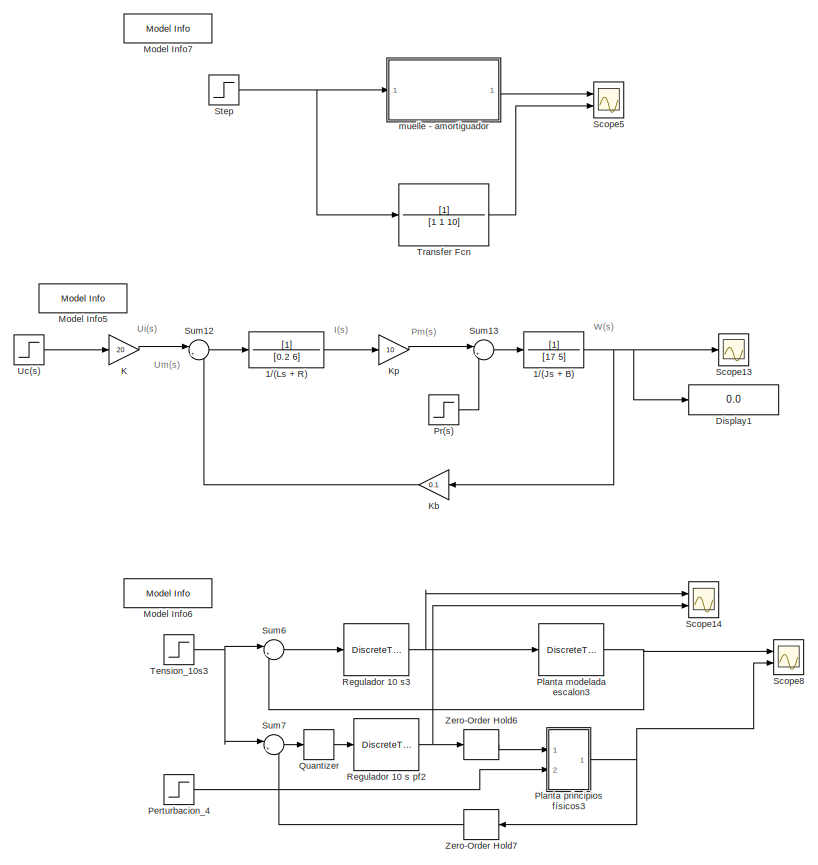
[diagram: root canvas - part 1/4, left side, full height]
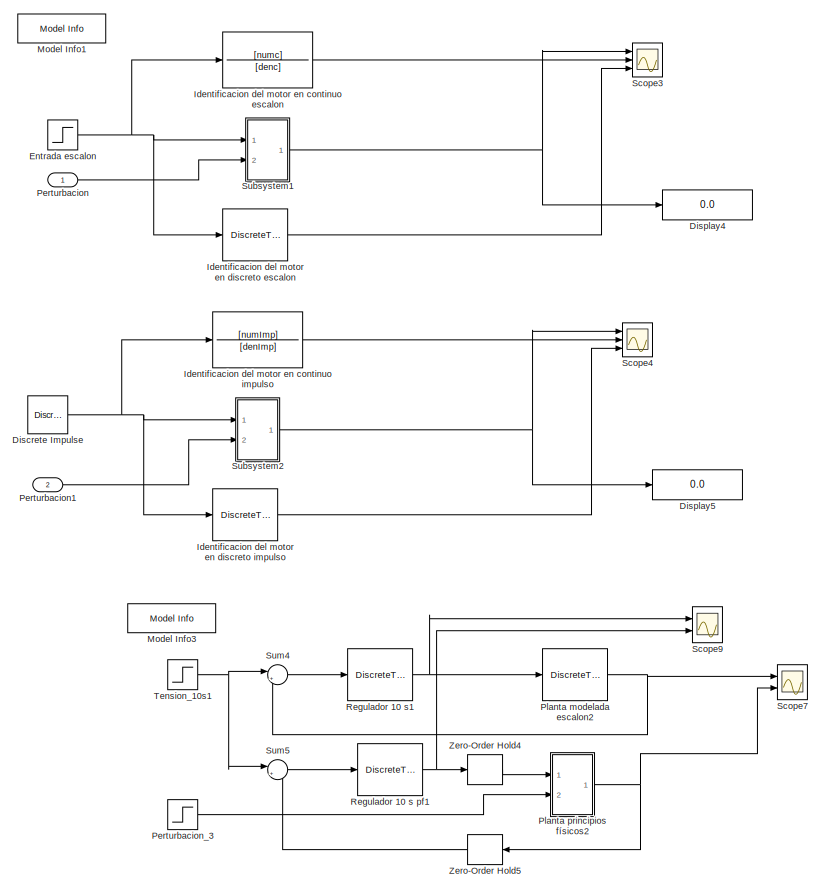
[diagram: root canvas - part 2/4, center side, full height]
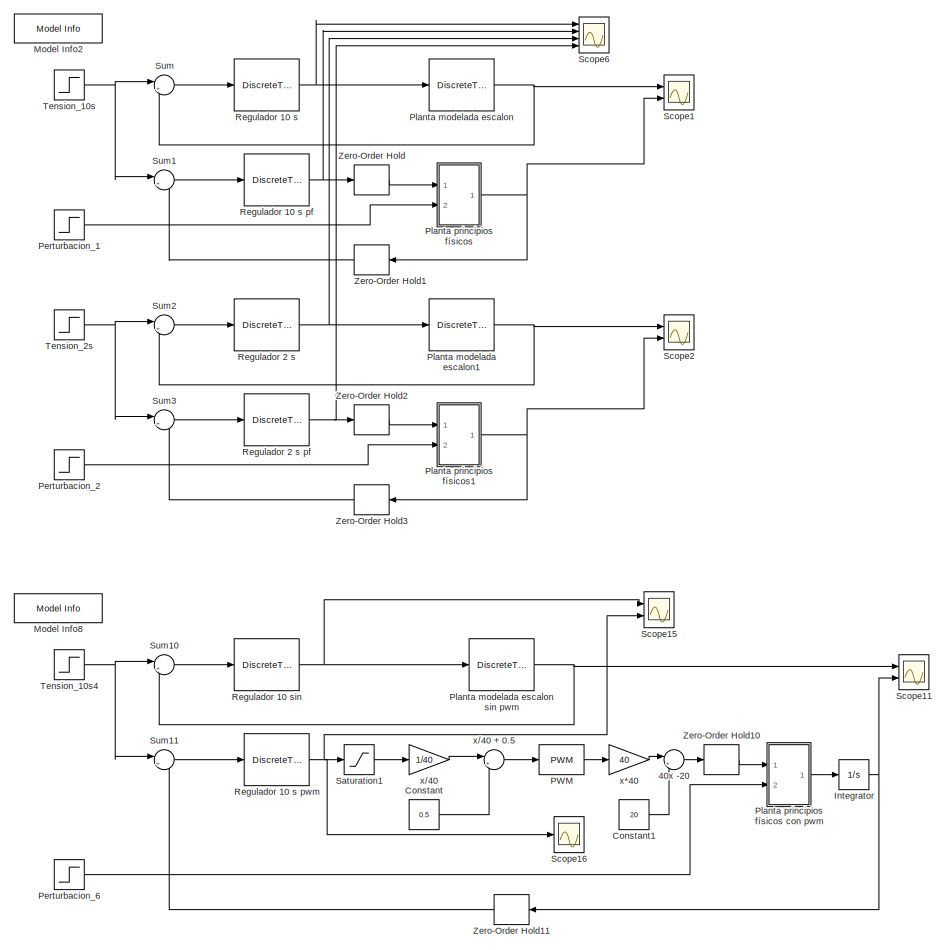
[diagram: root canvas - part 3/4, center side, full height]
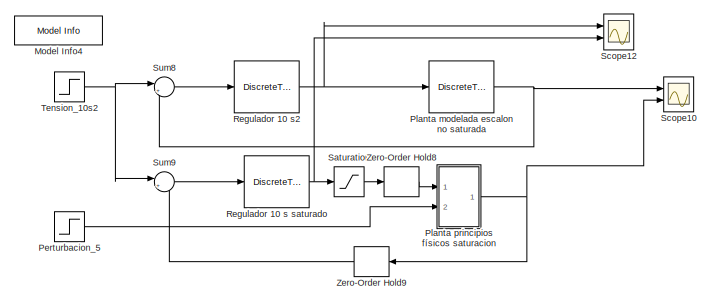
[diagram: root canvas - part 4/4, bottom right region]
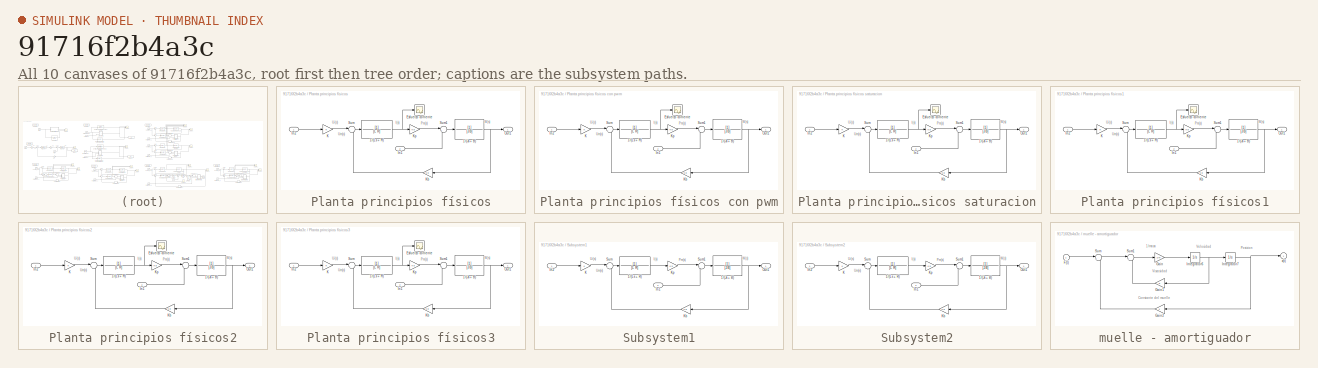
[diagram: thumbnail index - all 10 canvases of the model, root first then tree order]
MODEL slx_91716f2b4a3c
KIND model
CONFIG AbsTol = auto
CONFIG EnableMultiTasking = off
CONFIG FixedStep = 0.01
CONFIG MaxStep = auto
CONFIG MinStep = auto
CONFIG RelTol = 1e-3
CONFIG SampleTimeConstraint = Unconstrained
CONFIG SolverName = FixedStepAuto
CONFIG StartTime = 0.0
CONFIG StopTime = 40
BLOCK [TransferFcn] 1//(Js + B)
  Denominator = [17 5]
BLOCK [TransferFcn] 1//(Ls + R)
  Denominator = [0.2 6]
BLOCK [Sum] 40x -20
  Inputs = |+-
  Ports = [2, 1]
BLOCK [Constant] Constant
  Value = 0.5
BLOCK [Constant] Constant1
  Value = 20
BLOCK [Reference] Discrete Impulse  REF=dspsrcs4/Discrete 
Impulse
  Ports = [0, 1]
  SourceBlock = dspsrcs4/Discrete \nImpulse
  SourceProductBaseCode = DS
  SourceType = Discrete Impulse
BLOCK [Display] Display1
  Decimation = 1
  Ports = [1]
BLOCK [Display] Display4
  Decimation = 1
  Ports = [1]
BLOCK [Display] Display5
  Decimation = 1
  Ports = [1]
BLOCK [Step] Entrada escalon
  SampleTime = 0
  Time = 5
BLOCK [TransferFcn] Identificacion del motor en continuo escalon
  Denominator = [denc]
  Numerator = [numc]
BLOCK [TransferFcn] Identificacion del motor en continuo impulso
  Denominator = [denImp]
  Numerator = [numImp]
BLOCK [DiscreteTransferFcn] Identificacion del motor en discreto escalon
  Denominator = [den1]
  InputPortMap = u0
  Numerator = [num1]
  Ports = [1, 1]
  SampleTime = T
BLOCK [DiscreteTransferFcn] Identificacion del motor en discreto impulso
  Denominator = [den2]
  InputPortMap = u0
  Numerator = [num2]
  Ports = [1, 1]
  SampleTime = T
BLOCK [Integrator] Integrator
  Ports = [1, 1]
BLOCK [Gain] K
  Gain = 20
BLOCK [Gain] Kb
  Gain = 0.1
  NameLocation = top
BLOCK [Gain] Kp
  Gain = 10
BLOCK [Reference] Model Info1  REF=simulink/Model-Wide
Utilities/Model Info
  Ports = []
  SourceBlock = simulink/Model-Wide\nUtilities/Model Info
  SourceProductBaseCode = SL
  SourceType = CMBlock
BLOCK [Reference] Model Info2  REF=simulink/Model-Wide
Utilities/Model Info
  Ports = []
  SourceBlock = simulink/Model-Wide\nUtilities/Model Info
  SourceProductBaseCode = SL
  SourceType = CMBlock
BLOCK [Reference] Model Info3  REF=simulink/Model-Wide
Utilities/Model Info
  Ports = []
  SourceBlock = simulink/Model-Wide\nUtilities/Model Info
  SourceProductBaseCode = SL
  SourceType = CMBlock
BLOCK [Reference] Model Info4  REF=simulink/Model-Wide
Utilities/Model Info
  Ports = []
  SourceBlock = simulink/Model-Wide\nUtilities/Model Info
  SourceProductBaseCode = SL
  SourceType = CMBlock
BLOCK [Reference] Model Info5  REF=simulink/Model-Wide
Utilities/Model Info
  Ports = []
  SourceBlock = simulink/Model-Wide\nUtilities/Model Info
  SourceProductBaseCode = SL
  SourceType = CMBlock
BLOCK [Reference] Model Info6  REF=simulink/Model-Wide
Utilities/Model Info
  Ports = []
  SourceBlock = simulink/Model-Wide\nUtilities/Model Info
  SourceProductBaseCode = SL
  SourceType = CMBlock
BLOCK [Reference] Model Info7  REF=simulink/Model-Wide
Utilities/Model Info
  Ports = []
  SourceBlock = simulink/Model-Wide\nUtilities/Model Info
  SourceProductBaseCode = SL
  SourceType = CMBlock
BLOCK [Reference] Model Info8  REF=simulink/Model-Wide
Utilities/Model Info
  Ports = []
  SourceBlock = simulink/Model-Wide\nUtilities/Model Info
  SourceProductBaseCode = SL
  SourceType = CMBlock
BLOCK [Reference] PWM  REF=simulink/Discontinuities/PWM
  DisableCoverage = on
  Ports = [1, 1]
  SourceBlock = simulink/Discontinuities/PWM
  SourceProductBaseCode = SL
  SourceType = PWM
BLOCK [Inport] Perturbacion
BLOCK [Inport] Perturbacion1
  Port = 2
BLOCK [Step] Perturbacion_1
  After = 120
  SampleTime = 0
  Time = 15
BLOCK [Step] Perturbacion_2
  After = 120
  SampleTime = 0
  Time = 15
BLOCK [Step] Perturbacion_3
  After = 120
  SampleTime = 0
  Time = 15
BLOCK [Step] Perturbacion_4
  After = 120
  SampleTime = 0
  Time = 15
BLOCK [Step] Perturbacion_5
  After = 120
  SampleTime = 0
  Time = 5
BLOCK [Step] Perturbacion_6
  After = 120
  SampleTime = 0
  Time = 5
BLOCK [DiscreteTransferFcn] Planta modelada escalon
  Denominator = [den1]
  InputPortMap = u0
  Numerator = [num1]
  Ports = [1, 1]
  SampleTime = T
BLOCK [DiscreteTransferFcn] Planta modelada escalon no saturada
  Denominator = [den1]
  InputPortMap = u0
  Numerator = [num1]
  Ports = [1, 1]
  SampleTime = T
BLOCK [DiscreteTransferFcn] Planta modelada escalon sin pwm
  Denominator = [den1]
  InputPortMap = u0
  Numerator = [num1]
  Ports = [1, 1]
  SampleTime = T
BLOCK [DiscreteTransferFcn] Planta modelada escalon1
  Denominator = [den1]
  InputPortMap = u0
  Numerator = [num1]
  Ports = [1, 1]
  SampleTime = T
BLOCK [DiscreteTransferFcn] Planta modelada escalon2
  Denominator = [den1]
  InputPortMap = u0
  Numerator = [num1]
  Ports = [1, 1]
  SampleTime = T
BLOCK [DiscreteTransferFcn] Planta modelada escalon3
  Denominator = [den1]
  InputPortMap = u0
  Numerator = [num1]
  Ports = [1, 1]
  SampleTime = T
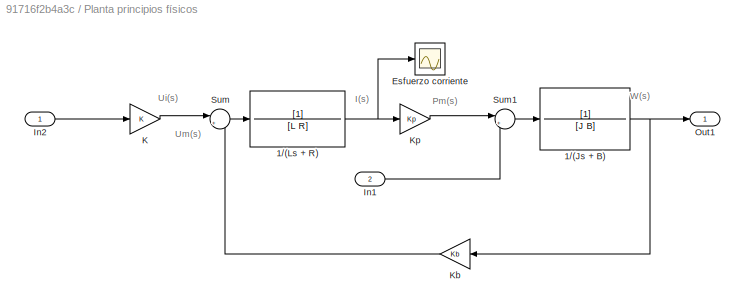
BLOCK [SubSystem] Planta principios físicos
  Ports = [2, 1]
  RequestExecContextInheritance = off
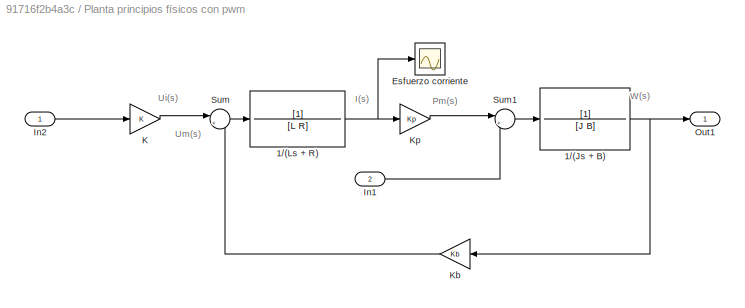
BLOCK [SubSystem] Planta principios físicos con pwm
  Ports = [2, 1]
  RequestExecContextInheritance = off
BLOCK [TransferFcn] Planta principios físicos con pwm/1//(Js + B)
  Denominator = [J B]
BLOCK [TransferFcn] Planta principios físicos con pwm/1//(Ls + R)
  Denominator = [L R]
BLOCK [Scope] Planta principios físicos con pwm/Esfuerzo corriente
  Floating = off
  NumInputPorts = 1
  Ports = [1]
  ScopeSpecificationString = Simulink.scopes.TimeScopeBlockCfg('CurrentConfiguration', extmgr.ConfigurationSet(extmgr.Configuration('Core','General UI',true),extmgr.Configuration('Core','Source UI',true),extmgr.Configuration('Sources','WiredSimulink',true,'DataLoggingVariableName','ScopeData2'),extmgr.Configuration('Visuals','Time Domain',true,'SerializedDisplays',{struct('MinYLimReal','-83.78901','MaxYLimReal','83.62965','YL...<+1404ch>
BLOCK [Inport] Planta principios físicos con pwm/In1
  Port = 2
BLOCK [Inport] Planta principios físicos con pwm/In2
BLOCK [Gain] Planta principios físicos con pwm/K
  Gain = K
BLOCK [Gain] Planta principios físicos con pwm/Kb
  Gain = Kb
  NameLocation = top
BLOCK [Gain] Planta principios físicos con pwm/Kp
  Gain = Kp
BLOCK [Outport] Planta principios físicos con pwm/Out1
BLOCK [Sum] Planta principios físicos con pwm/Sum
  Inputs = |+-
  Ports = [2, 1]
BLOCK [Sum] Planta principios físicos con pwm/Sum1
  Inputs = |+-
  Ports = [2, 1]
BLOCK [SubSystem] Planta principios físicos saturacion
  Ports = [2, 1]
  RequestExecContextInheritance = off
BLOCK [TransferFcn] Planta principios físicos saturacion/1//(Js + B)
  Denominator = [J B]
BLOCK [TransferFcn] Planta principios físicos saturacion/1//(Ls + R)
  Denominator = [L R]
BLOCK [Scope] Planta principios físicos saturacion/Esfuerzo corriente
  Floating = off
  NumInputPorts = 1
  Ports = [1]
  ScopeSpecificationString = Simulink.scopes.TimeScopeBlockCfg('CurrentConfiguration', extmgr.ConfigurationSet(extmgr.Configuration('Core','General UI',true),extmgr.Configuration('Core','Source UI',true),extmgr.Configuration('Sources','WiredSimulink',true,'DataLoggingVariableName','ScopeData2'),extmgr.Configuration('Visuals','Time Domain',true,'SerializedDisplays',{struct('MinYLimReal','-8.31811','MaxYLimReal','74.86303','YLa...<+1402ch>
BLOCK [Inport] Planta principios físicos saturacion/In1
  Port = 2
BLOCK [Inport] Planta principios físicos saturacion/In2
BLOCK [Gain] Planta principios físicos saturacion/K
  Gain = K
BLOCK [Gain] Planta principios físicos saturacion/Kb
  Gain = Kb
  NameLocation = top
BLOCK [Gain] Planta principios físicos saturacion/Kp
  Gain = Kp
BLOCK [Outport] Planta principios físicos saturacion/Out1
BLOCK [Sum] Planta principios físicos saturacion/Sum
  Inputs = |+-
  Ports = [2, 1]
BLOCK [Sum] Planta principios físicos saturacion/Sum1
  Inputs = |+-
  Ports = [2, 1]
BLOCK [TransferFcn] Planta principios físicos/1//(Js + B)
  Denominator = [J B]
BLOCK [TransferFcn] Planta principios físicos/1//(Ls + R)
  Denominator = [L R]
BLOCK [Scope] Planta principios físicos/Esfuerzo corriente
  Floating = off
  NumInputPorts = 1
  Ports = [1]
  ScopeSpecificationString = Simulink.scopes.TimeScopeBlockCfg('CurrentConfiguration', extmgr.ConfigurationSet(extmgr.Configuration('Core','General UI',true),extmgr.Configuration('Core','Source UI',true),extmgr.Configuration('Sources','WiredSimulink',true,'DataLoggingVariableName','ScopeData2'),extmgr.Configuration('Visuals','Time Domain',true,'SerializedDisplays',{struct('MinYLimReal','-5.88863','MaxYLimReal','52.99771','YLa...<+1402ch>
BLOCK [Inport] Planta principios físicos/In1
  Port = 2
BLOCK [Inport] Planta principios físicos/In2
BLOCK [Gain] Planta principios físicos/K
  Gain = K
BLOCK [Gain] Planta principios físicos/Kb
  Gain = Kb
  NameLocation = top
BLOCK [Gain] Planta principios físicos/Kp
  Gain = Kp
BLOCK [Outport] Planta principios físicos/Out1
BLOCK [Sum] Planta principios físicos/Sum
  Inputs = |+-
  Ports = [2, 1]
BLOCK [Sum] Planta principios físicos/Sum1
  Inputs = |+-
  Ports = [2, 1]
BLOCK [SubSystem] Planta principios físicos1
  Ports = [2, 1]
  RequestExecContextInheritance = off
BLOCK [TransferFcn] Planta principios físicos1/1//(Js + B)
  Denominator = [J B]
BLOCK [TransferFcn] Planta principios físicos1/1//(Ls + R)
  Denominator = [L R]
BLOCK [Scope] Planta principios físicos1/Esfuerzo corriente
  Floating = off
  NumInputPorts = 1
  Ports = [1]
  ScopeSpecificationString = Simulink.scopes.TimeScopeBlockCfg('CurrentConfiguration', extmgr.ConfigurationSet(extmgr.Configuration('Core','General UI',true),extmgr.Configuration('Core','Source UI',true),extmgr.Configuration('Sources','WiredSimulink',true,'DataLoggingVariableName','ScopeData2'),extmgr.Configuration('Visuals','Time Domain',true,'SerializedDisplays',{struct('MinYLimReal','-104.34644','MaxYLimReal','308.18393','...<+1412ch>
BLOCK [Inport] Planta principios físicos1/In1
  Port = 2
BLOCK [Inport] Planta principios físicos1/In2
BLOCK [Gain] Planta principios físicos1/K
  Gain = K
BLOCK [Gain] Planta principios físicos1/Kb
  Gain = Kb
  NameLocation = top
BLOCK [Gain] Planta principios físicos1/Kp
  Gain = Kp
BLOCK [Outport] Planta principios físicos1/Out1
BLOCK [Sum] Planta principios físicos1/Sum
  Inputs = |+-
  Ports = [2, 1]
BLOCK [Sum] Planta principios físicos1/Sum1
  Inputs = |+-
  Ports = [2, 1]
BLOCK [SubSystem] Planta principios físicos2
  Ports = [2, 1]
  RequestExecContextInheritance = off
BLOCK [TransferFcn] Planta principios físicos2/1//(Js + B)
  Denominator = [J B]
BLOCK [TransferFcn] Planta principios físicos2/1//(Ls + R)
  Denominator = [L R]
BLOCK [Scope] Planta principios físicos2/Esfuerzo corriente
  Floating = off
  NumInputPorts = 1
  Ports = [1]
  ScopeSpecificationString = Simulink.scopes.TimeScopeBlockCfg('CurrentConfiguration', extmgr.ConfigurationSet(extmgr.Configuration('Core','General UI',true),extmgr.Configuration('Core','Source UI',true),extmgr.Configuration('Sources','WiredSimulink',true,'DataLoggingVariableName','ScopeData2'),extmgr.Configuration('Visuals','Time Domain',true,'SerializedDisplays',{struct('MinYLimReal','-368.62377','MaxYLimReal','430.57568','...<+1412ch>
BLOCK [Inport] Planta principios físicos2/In1
  Port = 2
BLOCK [Inport] Planta principios físicos2/In2
BLOCK [Gain] Planta principios físicos2/K
  Gain = K
BLOCK [Gain] Planta principios físicos2/Kb
  Gain = Kb
  NameLocation = top
BLOCK [Gain] Planta principios físicos2/Kp
  Gain = Kp
BLOCK [Outport] Planta principios físicos2/Out1
BLOCK [Sum] Planta principios físicos2/Sum
  Inputs = |+-
  Ports = [2, 1]
BLOCK [Sum] Planta principios físicos2/Sum1
  Inputs = |+-
  Ports = [2, 1]
BLOCK [SubSystem] Planta principios físicos3
  Ports = [2, 1]
  RequestExecContextInheritance = off
BLOCK [TransferFcn] Planta principios físicos3/1//(Js + B)
  Denominator = [J B]
BLOCK [TransferFcn] Planta principios físicos3/1//(Ls + R)
  Denominator = [L R]
BLOCK [Scope] Planta principios físicos3/Esfuerzo corriente
  Floating = off
  NumInputPorts = 1
  Ports = [1]
  ScopeSpecificationString = Simulink.scopes.TimeScopeBlockCfg('CurrentConfiguration', extmgr.ConfigurationSet(extmgr.Configuration('Core','General UI',true),extmgr.Configuration('Core','Source UI',true),extmgr.Configuration('Sources','WiredSimulink',true,'DataLoggingVariableName','ScopeData2'),extmgr.Configuration('Visuals','Time Domain',true,'SerializedDisplays',{struct('MinYLimReal','-368.62377','MaxYLimReal','430.57568','...<+1412ch>
BLOCK [Inport] Planta principios físicos3/In1
  Port = 2
BLOCK [Inport] Planta principios físicos3/In2
BLOCK [Gain] Planta principios físicos3/K
  Gain = K
BLOCK [Gain] Planta principios físicos3/Kb
  Gain = Kb
  NameLocation = top
BLOCK [Gain] Planta principios físicos3/Kp
  Gain = Kp
BLOCK [Outport] Planta principios físicos3/Out1
BLOCK [Sum] Planta principios físicos3/Sum
  Inputs = |+-
  Ports = [2, 1]
BLOCK [Sum] Planta principios físicos3/Sum1
  Inputs = |+-
  Ports = [2, 1]
BLOCK [Step] Pr(s)
  After = 120
  SampleTime = 0
  Time = 20
BLOCK [Quantizer] Quantizer
BLOCK [DiscreteTransferFcn] Regulador 10 s
  Denominator = [denR1sim]
  InputPortMap = u0
  Numerator = [numR1sim]
  Ports = [1, 1]
  SampleTime = T
BLOCK [DiscreteTransferFcn] Regulador 10 s pf
  Denominator = [denR1sim]
  InputPortMap = u0
  Numerator = [numR1sim]
  Ports = [1, 1]
  SampleTime = T
BLOCK [DiscreteTransferFcn] Regulador 10 s pf1
  Denominator = [denR3sim]
  InputPortMap = u0
  Numerator = [numR3sim]
  Ports = [1, 1]
  SampleTime = T2
BLOCK [DiscreteTransferFcn] Regulador 10 s pf2
  Denominator = [denR3sim]
  InputPortMap = u0
  Numerator = [numR3sim]
  Ports = [1, 1]
  SampleTime = T
BLOCK [DiscreteTransferFcn] Regulador 10 s pwm
  Denominator = [denR4sim]
  InputPortMap = u0
  Numerator = [numR4sim]
  Ports = [1, 1]
  SampleTime = T
BLOCK [DiscreteTransferFcn] Regulador 10 s saturado
  Denominator = [denR1sim]
  InputPortMap = u0
  Numerator = [numR1sim]
  Ports = [1, 1]
  SampleTime = T
BLOCK [DiscreteTransferFcn] Regulador 10 s1
  Denominator = [denR3sim]
  InputPortMap = u0
  Numerator = [numR3sim]
  Ports = [1, 1]
  SampleTime = T2
BLOCK [DiscreteTransferFcn] Regulador 10 s2
  Denominator = [denR1sim]
  InputPortMap = u0
  Numerator = [numR1sim]
  Ports = [1, 1]
  SampleTime = T
BLOCK [DiscreteTransferFcn] Regulador 10 s3
  Denominator = [denR1sim]
  InputPortMap = u0
  Numerator = [numR1sim]
  Ports = [1, 1]
  SampleTime = T
BLOCK [DiscreteTransferFcn] Regulador 10 sin
  Denominator = [denR4sim]
  InputPortMap = u0
  Numerator = [numR4sim]
  Ports = [1, 1]
  SampleTime = T
BLOCK [DiscreteTransferFcn] Regulador 2 s
  Denominator = [denR2sim]
  InputPortMap = u0
  Numerator = [numR2sim]
  Ports = [1, 1]
  SampleTime = T
BLOCK [DiscreteTransferFcn] Regulador 2 s pf
  Denominator = [denR2sim]
  InputPortMap = u0
  Numerator = [numR2sim]
  Ports = [1, 1]
  SampleTime = T
BLOCK [Saturate] Saturation
  LowerLimit = -20
  UpperLimit = 20
BLOCK [Saturate] Saturation1
  LinearizeAsGain = off
  LowerLimit = -20
  UpperLimit = 20
BLOCK [Scope] Scope1
  Floating = off
  NumInputPorts = 2
  Ports = [2]
  ScopeSpecificationString = Simulink.scopes.TimeScopeBlockCfg('CurrentConfiguration', extmgr.ConfigurationSet(extmgr.Configuration('Core','General UI',true),extmgr.Configuration('Core','Source UI',true),extmgr.Configuration('Sources','WiredSimulink',true,'DataLoggingVariableName','ScopeData1'),extmgr.Configuration('Visuals','Time Domain',true,'SerializedDisplays',{struct('MinYLimReal','-3.37751','MaxYLimReal','30.3976','YLab...<+1438ch>
BLOCK [Scope] Scope10
  Floating = off
  NumInputPorts = 2
  Ports = [2]
  ScopeSpecificationString = Simulink.scopes.TimeScopeBlockCfg('CurrentConfiguration', extmgr.ConfigurationSet(extmgr.Configuration('Core','General UI',true),extmgr.Configuration('Core','Source UI',true),extmgr.Configuration('Sources','WiredSimulink',true,'DataLoggingVariableName','ScopeData9'),extmgr.Configuration('Visuals','Time Domain',true,'SerializedDisplays',{struct('MinYLimReal','-19.69875','MaxYLimReal','177.11276','Y...<+1471ch>
BLOCK [Scope] Scope11
  Floating = off
  NumInputPorts = 2
  Ports = [2]
  ScopeSpecificationString = Simulink.scopes.TimeScopeBlockCfg('CurrentConfiguration', extmgr.ConfigurationSet(extmgr.Configuration('Core','General UI',true),extmgr.Configuration('Core','Source UI',true),extmgr.Configuration('Sources','WiredSimulink',true,'DataLoggingVariableName','ScopeData10'),extmgr.Configuration('Visuals','Time Domain',true,'SerializedDisplays',{struct('MinYLimReal','-46339815703834184.00000','MaxYLimReal...<+1558ch>
BLOCK [Scope] Scope12
  Floating = off
  NumInputPorts = 2
  Ports = [2]
  ScopeSpecificationString = Simulink.scopes.TimeScopeBlockCfg('CurrentConfiguration', extmgr.ConfigurationSet(extmgr.Configuration('Core','General UI',true),extmgr.Configuration('Core','Source UI',true),extmgr.Configuration('Sources','WiredSimulink',true,'DataLoggingVariableName','ScopeData11'),extmgr.Configuration('Visuals','Time Domain',true,'SerializedDisplays',{struct('MinYLimReal','-3.04429','MaxYLimReal','27.39863','YL...<+1433ch>
BLOCK [Scope] Scope13
  Floating = off
  NumInputPorts = 1
  Ports = [1]
  ScopeSpecificationString = Simulink.scopes.TimeScopeBlockCfg('CurrentConfiguration', extmgr.ConfigurationSet(extmgr.Configuration('Core','General UI',true),extmgr.Configuration('Core','Source UI',true),extmgr.Configuration('Sources','WiredSimulink',true,'DataLoggingVariableName','ScopeData12'),extmgr.Configuration('Visuals','Time Domain',true,'SerializedDisplays',{struct('MinYLimReal','-16.09176','MaxYLimReal','144.82588','...<+1409ch>
BLOCK [Scope] Scope14
  Floating = off
  NumInputPorts = 2
  Ports = [2]
  ScopeSpecificationString = Simulink.scopes.TimeScopeBlockCfg('CurrentConfiguration', extmgr.ConfigurationSet(extmgr.Configuration('Core','General UI',true),extmgr.Configuration('Core','Source UI',true),extmgr.Configuration('Sources','WiredSimulink',true,'DataLoggingVariableName','ScopeData7'),extmgr.Configuration('Visuals','Time Domain',true,'SerializedDisplays',{struct('MinYLimReal','-199497558844388149069661540974592.0000...<+1677ch>
BLOCK [Scope] Scope15
  Floating = off
  NumInputPorts = 2
  Ports = [2]
  ScopeSpecificationString = Simulink.scopes.TimeScopeBlockCfg('CurrentConfiguration', extmgr.ConfigurationSet(extmgr.Configuration('Core','General UI',true),extmgr.Configuration('Core','Source UI',true),extmgr.Configuration('Sources','WiredSimulink',true,'DataLoggingVariableName','ScopeData14'),extmgr.Configuration('Visuals','Time Domain',true,'SerializedDisplays',{struct('MinYLimReal','-442476940467345984.00000','MaxYLimRea...<+1559ch>
BLOCK [Scope] Scope16
  Floating = off
  NumInputPorts = 1
  Ports = [1]
  ScopeSpecificationString = Simulink.scopes.TimeScopeBlockCfg('CurrentConfiguration', extmgr.ConfigurationSet(extmgr.Configuration('Core','General UI',true),extmgr.Configuration('Core','Source UI',true),extmgr.Configuration('Sources','WiredSimulink',true,'DataLoggingVariableName','ScopeData15'),extmgr.Configuration('Visuals','Time Domain',true,'SerializedDisplays',{struct('MinYLimReal','-14.75795','MaxYLimReal','14.84612','Y...<+1412ch>
BLOCK [Scope] Scope2
  Floating = off
  NumInputPorts = 2
  Ports = [2]
  ScopeSpecificationString = Simulink.scopes.TimeScopeBlockCfg('CurrentConfiguration', extmgr.ConfigurationSet(extmgr.Configuration('Core','General UI',true),extmgr.Configuration('Core','Source UI',true),extmgr.Configuration('Sources','WiredSimulink',true,'DataLoggingVariableName','ScopeData3'),extmgr.Configuration('Visuals','Time Domain',true,'SerializedDisplays',{struct('MinYLimReal','-3.79852','MaxYLimReal','34.18668','YLa...<+1444ch>
BLOCK [Scope] Scope3
  Floating = off
  NumInputPorts = 3
  Ports = [3]
  ScopeSpecificationString = Simulink.scopes.TimeScopeBlockCfg('CurrentConfiguration', extmgr.ConfigurationSet(extmgr.Configuration('Core','General UI',true),extmgr.Configuration('Core','Source UI',true),extmgr.Configuration('Sources','WiredSimulink',true,'DataLoggingVariableName','ScopeData3'),extmgr.Configuration('Visuals','Time Domain',true,'SerializedDisplays',{struct('MinYLimReal','-0.80643','MaxYLimReal','7.25789','YLab...<+1490ch>
BLOCK [Scope] Scope4
  Floating = off
  NumInputPorts = 3
  Ports = [3]
  ScopeSpecificationString = Simulink.scopes.TimeScopeBlockCfg('CurrentConfiguration', extmgr.ConfigurationSet(extmgr.Configuration('Core','General UI',true),extmgr.Configuration('Core','Source UI',true),extmgr.Configuration('Sources','WiredSimulink',true,'DataLoggingVariableName','ScopeData1'),extmgr.Configuration('Visuals','Time Domain',true,'SerializedDisplays',{struct('MinYLimReal','-0.02331','MaxYLimReal','0.20978','YLab...<+1492ch>
BLOCK [Scope] Scope5
  Floating = off
  NumInputPorts = 2
  Ports = [2]
  ScopeSpecificationString = Simulink.scopes.TimeScopeBlockCfg('CurrentConfiguration', extmgr.ConfigurationSet(extmgr.Configuration('Core','General UI',true),extmgr.Configuration('Core','Source UI',true),extmgr.Configuration('Sources','WiredSimulink',true,'DataLoggingVariableName','ScopeData4'),extmgr.Configuration('Visuals','Time Domain',true,'SerializedDisplays',{struct('MinYLimReal','-0.01999','MaxYLimReal','0.17994','YLab...<+1495ch>
BLOCK [Scope] Scope6
  Floating = off
  NumInputPorts = 4
  Ports = [4]
  ScopeSpecificationString = Simulink.scopes.TimeScopeBlockCfg('CurrentConfiguration', extmgr.ConfigurationSet(extmgr.Configuration('Core','General UI',true),extmgr.Configuration('Core','Source UI',true),extmgr.Configuration('Sources','WiredSimulink',true,'DataLoggingVariableName','ScopeData5'),extmgr.Configuration('Visuals','Time Domain',true,'SerializedDisplays',{struct('MinYLimReal','-32.30739','MaxYLimReal','97.24749','YL...<+1462ch>
BLOCK [Scope] Scope7
  Floating = off
  NumInputPorts = 2
  Ports = [2]
  ScopeSpecificationString = Simulink.scopes.TimeScopeBlockCfg('CurrentConfiguration', extmgr.ConfigurationSet(extmgr.Configuration('Core','General UI',true),extmgr.Configuration('Core','Source UI',true),extmgr.Configuration('Sources','WiredSimulink',true,'DataLoggingVariableName','ScopeData6'),extmgr.Configuration('Visuals','Time Domain',true,'SerializedDisplays',{struct('MinYLimReal','-37482550088556147310076637478912.00000...<+1686ch>
BLOCK [Scope] Scope8
  Floating = off
  NumInputPorts = 2
  Ports = [2]
  ScopeSpecificationString = Simulink.scopes.TimeScopeBlockCfg('CurrentConfiguration', extmgr.ConfigurationSet(extmgr.Configuration('Core','General UI',true),extmgr.Configuration('Core','Source UI',true),extmgr.Configuration('Sources','WiredSimulink',true,'DataLoggingVariableName','ScopeData13'),extmgr.Configuration('Visuals','Time Domain',true,'SerializedDisplays',{struct('MinYLimReal','-3.27983','MaxYLimReal','29.51843','YL...<+1445ch>
BLOCK [Scope] Scope9
  Floating = off
  NumInputPorts = 2
  Ports = [2]
  ScopeSpecificationString = Simulink.scopes.TimeScopeBlockCfg('CurrentConfiguration', extmgr.ConfigurationSet(extmgr.Configuration('Core','General UI',true),extmgr.Configuration('Core','Source UI',true),extmgr.Configuration('Sources','WiredSimulink',true,'DataLoggingVariableName','ScopeData8'),extmgr.Configuration('Visuals','Time Domain',true,'SerializedDisplays',{struct('MinYLimReal','-199497558844388149069661540974592.0000...<+1677ch>
BLOCK [Step] Step
  SampleTime = 0
  Time = 0
BLOCK [SubSystem] Subsystem1
  Ports = [2, 1]
  RequestExecContextInheritance = off
BLOCK [TransferFcn] Subsystem1/1//(Js + B)
  Denominator = [J B]
BLOCK [TransferFcn] Subsystem1/1//(Ls + R)
  Denominator = [L R]
BLOCK [Inport] Subsystem1/In1
  Port = 2
BLOCK [Inport] Subsystem1/In2
BLOCK [Gain] Subsystem1/K
  Gain = K
BLOCK [Gain] Subsystem1/Kb
  Gain = Kb
  NameLocation = top
BLOCK [Gain] Subsystem1/Kp
  Gain = Kp
BLOCK [Outport] Subsystem1/Out1
BLOCK [Sum] Subsystem1/Sum
  Inputs = |+-
  Ports = [2, 1]
BLOCK [Sum] Subsystem1/Sum1
  Inputs = |+-
  Ports = [2, 1]
BLOCK [SubSystem] Subsystem2
  Ports = [2, 1]
  RequestExecContextInheritance = off
BLOCK [TransferFcn] Subsystem2/1//(Js + B)
  Denominator = [J B]
BLOCK [TransferFcn] Subsystem2/1//(Ls + R)
  Denominator = [L R]
BLOCK [Inport] Subsystem2/In1
  Port = 2
BLOCK [Inport] Subsystem2/In2
BLOCK [Gain] Subsystem2/K
  Gain = K
BLOCK [Gain] Subsystem2/Kb
  Gain = Kb
  NameLocation = top
BLOCK [Gain] Subsystem2/Kp
  Gain = Kp
BLOCK [Outport] Subsystem2/Out1
BLOCK [Sum] Subsystem2/Sum
  Inputs = |+-
  Ports = [2, 1]
BLOCK [Sum] Subsystem2/Sum1
  Inputs = |+-
  Ports = [2, 1]
BLOCK [Sum] Sum
  Inputs = |+-
  Ports = [2, 1]
BLOCK [Sum] Sum1
  Inputs = |+-
  Ports = [2, 1]
BLOCK [Sum] Sum10
  Inputs = |+-
  Ports = [2, 1]
BLOCK [Sum] Sum11
  Inputs = |+-
  Ports = [2, 1]
BLOCK [Sum] Sum12
  Inputs = |+-
  Ports = [2, 1]
BLOCK [Sum] Sum13
  Inputs = |+-
  Ports = [2, 1]
BLOCK [Sum] Sum2
  Inputs = |+-
  Ports = [2, 1]
BLOCK [Sum] Sum3
  Inputs = |+-
  Ports = [2, 1]
BLOCK [Sum] Sum4
  Inputs = |+-
  Ports = [2, 1]
BLOCK [Sum] Sum5
  Inputs = |+-
  Ports = [2, 1]
BLOCK [Sum] Sum6
  Inputs = |+-
  Ports = [2, 1]
BLOCK [Sum] Sum7
  Inputs = |+-
  Ports = [2, 1]
BLOCK [Sum] Sum8
  Inputs = |+-
  Ports = [2, 1]
BLOCK [Sum] Sum9
  Inputs = |+-
  Ports = [2, 1]
BLOCK [Step] Tension_10s
  After = 20
  SampleTime = 0
  Time = 5
BLOCK [Step] Tension_10s1
  After = 20
  SampleTime = 0
  Time = 5
BLOCK [Step] Tension_10s2
  After = 120
  SampleTime = 0
  Time = 5
BLOCK [Step] Tension_10s3
  After = 20
  SampleTime = 0
  Time = 5
BLOCK [Step] Tension_10s4
  After = 20
  SampleTime = 0
  Time = 5
BLOCK [Step] Tension_2s
  After = 20
  SampleTime = 0
  Time = 5
BLOCK [TransferFcn] Transfer Fcn
  Denominator = [1 1 10]
BLOCK [Step] Uc(s)
  After = 20
  SampleTime = 0
  Time = 0
BLOCK [ZeroOrderHold] Zero-Order Hold
  SampleTime = T
BLOCK [ZeroOrderHold] Zero-Order Hold1
  NameLocation = top
  SampleTime = T
BLOCK [ZeroOrderHold] Zero-Order Hold10
  SampleTime = T
BLOCK [ZeroOrderHold] Zero-Order Hold11
  NameLocation = top
  SampleTime = T
BLOCK [ZeroOrderHold] Zero-Order Hold2
  SampleTime = T
BLOCK [ZeroOrderHold] Zero-Order Hold3
  NameLocation = top
  SampleTime = T
BLOCK [ZeroOrderHold] Zero-Order Hold4
  SampleTime = T2
BLOCK [ZeroOrderHold] Zero-Order Hold5
  NameLocation = top
  SampleTime = T2
BLOCK [ZeroOrderHold] Zero-Order Hold6
  SampleTime = T
BLOCK [ZeroOrderHold] Zero-Order Hold7
  NameLocation = top
  SampleTime = T
BLOCK [ZeroOrderHold] Zero-Order Hold8
  SampleTime = T
BLOCK [ZeroOrderHold] Zero-Order Hold9
  NameLocation = top
  SampleTime = T
BLOCK [SubSystem] muelle - amortiguador
  Ports = [1, 1]
  RequestExecContextInheritance = off
BLOCK [Inport] muelle - amortiguador/F(t)
  IconDisplay = Signal name
BLOCK [Gain] muelle - amortiguador/Gain
  Gain = 1/m
BLOCK [Gain] muelle - amortiguador/Gain1
  Gain = b
BLOCK [Gain] muelle - amortiguador/Gain2
  Gain = k
BLOCK [Integrator] muelle - amortiguador/Integrator6
  Ports = [1, 1]
BLOCK [Integrator] muelle - amortiguador/Integrator7
  Ports = [1, 1]
BLOCK [Sum] muelle - amortiguador/Sum
  Inputs = |+-
  Ports = [2, 1]
BLOCK [Sum] muelle - amortiguador/Sum1
  Inputs = |+-
  Ports = [2, 1]
BLOCK [Outport] muelle - amortiguador/x(t)
  IconDisplay = Signal name
BLOCK [Gain] x*40
  Gain = 40
BLOCK [Gain] x//40
  Gain = 1/40
BLOCK [Sum] x//40 + 0.5
  Inputs = |++
  Ports = [2, 1]
ANNOTATION (root): I(s)
ANNOTATION (root): Pm(s)
ANNOTATION (root): Ui(s)
ANNOTATION (root): Um(s)
ANNOTATION (root): W(s)
ANNOTATION Planta principios físicos: I(s)
ANNOTATION Planta principios físicos: Pm(s)
ANNOTATION Planta principios físicos: Ui(s)
ANNOTATION Planta principios físicos: Um(s)
ANNOTATION Planta principios físicos: W(s)
ANNOTATION Planta principios físicos con pwm: I(s)
ANNOTATION Planta principios físicos con pwm: Pm(s)
ANNOTATION Planta principios físicos con pwm: Ui(s)
ANNOTATION Planta principios físicos con pwm: Um(s)
ANNOTATION Planta principios físicos con pwm: W(s)
ANNOTATION Planta principios físicos saturacion: I(s)
ANNOTATION Planta principios físicos saturacion: Pm(s)
ANNOTATION Planta principios físicos saturacion: Ui(s)
ANNOTATION Planta principios físicos saturacion: Um(s)
ANNOTATION Planta principios físicos saturacion: W(s)
ANNOTATION Planta principios físicos1: I(s)
ANNOTATION Planta principios físicos1: Pm(s)
ANNOTATION Planta principios físicos1: Ui(s)
ANNOTATION Planta principios físicos1: Um(s)
ANNOTATION Planta principios físicos1: W(s)
ANNOTATION Planta principios físicos2: I(s)
ANNOTATION Planta principios físicos2: Pm(s)
ANNOTATION Planta principios físicos2: Ui(s)
ANNOTATION Planta principios físicos2: Um(s)
ANNOTATION Planta principios físicos2: W(s)
ANNOTATION Planta principios físicos3: I(s)
ANNOTATION Planta principios físicos3: Pm(s)
ANNOTATION Planta principios físicos3: Ui(s)
ANNOTATION Planta principios físicos3: Um(s)
ANNOTATION Planta principios físicos3: W(s)
ANNOTATION Subsystem1: I(s)
ANNOTATION Subsystem1: Pm(s)
ANNOTATION Subsystem1: Ui(s)
ANNOTATION Subsystem1: Um(s)
ANNOTATION Subsystem1: W(s)
ANNOTATION Subsystem2: I(s)
ANNOTATION Subsystem2: Pm(s)
ANNOTATION Subsystem2: Ui(s)
ANNOTATION Subsystem2: Um(s)
ANNOTATION Subsystem2: W(s)
ANNOTATION muelle - amortiguador: 1/masa
ANNOTATION muelle - amortiguador: Constante del muelle
ANNOTATION muelle - amortiguador: Posicion
ANNOTATION muelle - amortiguador: Velocidad
ANNOTATION muelle - amortiguador: Viscosidad
NET 1//(Js + B):1 -> Display1:1, Kb:1, Scope13:1
LINE 1//(Ls + R):1 -> Kp:1
LINE 40x -20:1 -> Zero-Order Hold10:1
LINE Constant1:1 -> 40x -20:2
LINE Constant:1 -> x//40 + 0.5:2
NET Discrete Impulse:1 -> Identificacion del motor en continuo impulso:1, Identificacion del motor en discreto impulso:1, Subsystem2:1
NET Entrada escalon:1 -> Identificacion del motor en continuo escalon:1, Identificacion del motor en discreto escalon:1, Subsystem1:1
LINE Identificacion del motor en continuo escalon:1 -> Scope3:2
LINE Identificacion del motor en continuo impulso:1 -> Scope4:2
LINE Identificacion del motor en discreto escalon:1 -> Scope3:3
LINE Identificacion del motor en discreto impulso:1 -> Scope4:3
NET Integrator:1 -> Scope11:2, Zero-Order Hold11:1
LINE K:1 -> Sum12:1
LINE Kb:1 -> Sum12:2
LINE Kp:1 -> Sum13:1
LINE PWM:1 -> x*40:1
LINE Perturbacion1:1 -> Subsystem2:2
LINE Perturbacion:1 -> Subsystem1:2
LINE Perturbacion_1:1 -> Planta principios físicos:2
LINE Perturbacion_2:1 -> Planta principios físicos1:2
LINE Perturbacion_3:1 -> Planta principios físicos2:2
LINE Perturbacion_4:1 -> Planta principios físicos3:2
LINE Perturbacion_5:1 -> Planta principios físicos saturacion:2
LINE Perturbacion_6:1 -> Planta principios físicos con pwm:2
NET Planta modelada escalon no saturada:1 -> Scope10:1, Sum8:2
NET Planta modelada escalon sin pwm:1 -> Scope11:1, Sum10:2
NET Planta modelada escalon1:1 -> Scope2:1, Sum2:2
NET Planta modelada escalon2:1 -> Scope7:1, Sum4:2
NET Planta modelada escalon3:1 -> Scope8:1, Sum6:2
NET Planta modelada escalon:1 -> Scope1:1, Sum:2
NET Planta principios físicos con pwm/1//(Js + B):1 -> Planta principios físicos con pwm/Kb:1, Planta principios físicos con pwm/Out1:1
NET Planta principios físicos con pwm/1//(Ls + R):1 -> Planta principios físicos con pwm/Esfuerzo corriente:1, Planta principios físicos con pwm/Kp:1
LINE Planta principios físicos con pwm/In1:1 -> Planta principios físicos con pwm/Sum1:2
LINE Planta principios físicos con pwm/In2:1 -> Planta principios físicos con pwm/K:1
LINE Planta principios físicos con pwm/K:1 -> Planta principios físicos con pwm/Sum:1
LINE Planta principios físicos con pwm/Kb:1 -> Planta principios físicos con pwm/Sum:2
LINE Planta principios físicos con pwm/Kp:1 -> Planta principios físicos con pwm/Sum1:1
LINE Planta principios físicos con pwm/Sum1:1 -> Planta principios físicos con pwm/1//(Js + B):1
LINE Planta principios físicos con pwm/Sum:1 -> Planta principios físicos con pwm/1//(Ls + R):1
LINE Planta principios físicos con pwm:1 -> Integrator:1
NET Planta principios físicos saturacion/1//(Js + B):1 -> Planta principios físicos saturacion/Kb:1, Planta principios físicos saturacion/Out1:1
NET Planta principios físicos saturacion/1//(Ls + R):1 -> Planta principios físicos saturacion/Esfuerzo corriente:1, Planta principios físicos saturacion/Kp:1
LINE Planta principios físicos saturacion/In1:1 -> Planta principios físicos saturacion/Sum1:2
LINE Planta principios físicos saturacion/In2:1 -> Planta principios físicos saturacion/K:1
LINE Planta principios físicos saturacion/K:1 -> Planta principios físicos saturacion/Sum:1
LINE Planta principios físicos saturacion/Kb:1 -> Planta principios físicos saturacion/Sum:2
LINE Planta principios físicos saturacion/Kp:1 -> Planta principios físicos saturacion/Sum1:1
LINE Planta principios físicos saturacion/Sum1:1 -> Planta principios físicos saturacion/1//(Js + B):1
LINE Planta principios físicos saturacion/Sum:1 -> Planta principios físicos saturacion/1//(Ls + R):1
NET Planta principios físicos saturacion:1 -> Scope10:2, Zero-Order Hold9:1
NET Planta principios físicos/1//(Js + B):1 -> Planta principios físicos/Kb:1, Planta principios físicos/Out1:1
NET Planta principios físicos/1//(Ls + R):1 -> Planta principios físicos/Esfuerzo corriente:1, Planta principios físicos/Kp:1
LINE Planta principios físicos/In1:1 -> Planta principios físicos/Sum1:2
LINE Planta principios físicos/In2:1 -> Planta principios físicos/K:1
LINE Planta principios físicos/K:1 -> Planta principios físicos/Sum:1
LINE Planta principios físicos/Kb:1 -> Planta principios físicos/Sum:2
LINE Planta principios físicos/Kp:1 -> Planta principios físicos/Sum1:1
LINE Planta principios físicos/Sum1:1 -> Planta principios físicos/1//(Js + B):1
LINE Planta principios físicos/Sum:1 -> Planta principios físicos/1//(Ls + R):1
NET Planta principios físicos1/1//(Js + B):1 -> Planta principios físicos1/Kb:1, Planta principios físicos1/Out1:1
NET Planta principios físicos1/1//(Ls + R):1 -> Planta principios físicos1/Esfuerzo corriente:1, Planta principios físicos1/Kp:1
LINE Planta principios físicos1/In1:1 -> Planta principios físicos1/Sum1:2
LINE Planta principios físicos1/In2:1 -> Planta principios físicos1/K:1
LINE Planta principios físicos1/K:1 -> Planta principios físicos1/Sum:1
LINE Planta principios físicos1/Kb:1 -> Planta principios físicos1/Sum:2
LINE Planta principios físicos1/Kp:1 -> Planta principios físicos1/Sum1:1
LINE Planta principios físicos1/Sum1:1 -> Planta principios físicos1/1//(Js + B):1
LINE Planta principios físicos1/Sum:1 -> Planta principios físicos1/1//(Ls + R):1
NET Planta principios físicos1:1 -> Scope2:2, Zero-Order Hold3:1
NET Planta principios físicos2/1//(Js + B):1 -> Planta principios físicos2/Kb:1, Planta principios físicos2/Out1:1
NET Planta principios físicos2/1//(Ls + R):1 -> Planta principios físicos2/Esfuerzo corriente:1, Planta principios físicos2/Kp:1
LINE Planta principios físicos2/In1:1 -> Planta principios físicos2/Sum1:2
LINE Planta principios físicos2/In2:1 -> Planta principios físicos2/K:1
LINE Planta principios físicos2/K:1 -> Planta principios físicos2/Sum:1
LINE Planta principios físicos2/Kb:1 -> Planta principios físicos2/Sum:2
LINE Planta principios físicos2/Kp:1 -> Planta principios físicos2/Sum1:1
LINE Planta principios físicos2/Sum1:1 -> Planta principios físicos2/1//(Js + B):1
LINE Planta principios físicos2/Sum:1 -> Planta principios físicos2/1//(Ls + R):1
NET Planta principios físicos2:1 -> Scope7:2, Zero-Order Hold5:1
NET Planta principios físicos3/1//(Js + B):1 -> Planta principios físicos3/Kb:1, Planta principios físicos3/Out1:1
NET Planta principios físicos3/1//(Ls + R):1 -> Planta principios físicos3/Esfuerzo corriente:1, Planta principios físicos3/Kp:1
LINE Planta principios físicos3/In1:1 -> Planta principios físicos3/Sum1:2
LINE Planta principios físicos3/In2:1 -> Planta principios físicos3/K:1
LINE Planta principios físicos3/K:1 -> Planta principios físicos3/Sum:1
LINE Planta principios físicos3/Kb:1 -> Planta principios físicos3/Sum:2
LINE Planta principios físicos3/Kp:1 -> Planta principios físicos3/Sum1:1
LINE Planta principios físicos3/Sum1:1 -> Planta principios físicos3/1//(Js + B):1
LINE Planta principios físicos3/Sum:1 -> Planta principios físicos3/1//(Ls + R):1
NET Planta principios físicos3:1 -> Scope8:2, Zero-Order Hold7:1
NET Planta principios físicos:1 -> Scope1:2, Zero-Order Hold1:1
LINE Pr(s):1 -> Sum13:2
LINE Quantizer:1 -> Regulador 10 s pf2:1
NET Regulador 10 s pf1:1 -> Scope9:2, Zero-Order Hold4:1
NET Regulador 10 s pf2:1 -> Scope14:2, Zero-Order Hold6:1
NET Regulador 10 s pf:1 -> Scope6:2, Zero-Order Hold:1
NET Regulador 10 s pwm:1 -> Saturation1:1, Scope15:2, Scope16:1
NET Regulador 10 s saturado:1 -> Saturation:1, Scope12:2
NET Regulador 10 s1:1 -> Planta modelada escalon2:1, Scope9:1
NET Regulador 10 s2:1 -> Planta modelada escalon no saturada:1, Scope12:1
NET Regulador 10 s3:1 -> Planta modelada escalon3:1, Scope14:1
NET Regulador 10 s:1 -> Planta modelada escalon:1, Scope6:1
NET Regulador 10 sin:1 -> Planta modelada escalon sin pwm:1, Scope15:1
NET Regulador 2 s pf:1 -> Scope6:4, Zero-Order Hold2:1
NET Regulador 2 s:1 -> Planta modelada escalon1:1, Scope6:3
LINE Saturation1:1 -> x//40:1
LINE Saturation:1 -> Zero-Order Hold8:1
NET Step:1 -> Transfer Fcn:1, muelle - amortiguador:1
NET Subsystem1/1//(Js + B):1 -> Subsystem1/Kb:1, Subsystem1/Out1:1
LINE Subsystem1/1//(Ls + R):1 -> Subsystem1/Kp:1
LINE Subsystem1/In1:1 -> Subsystem1/Sum1:2
LINE Subsystem1/In2:1 -> Subsystem1/K:1
LINE Subsystem1/K:1 -> Subsystem1/Sum:1
LINE Subsystem1/Kb:1 -> Subsystem1/Sum:2
LINE Subsystem1/Kp:1 -> Subsystem1/Sum1:1
LINE Subsystem1/Sum1:1 -> Subsystem1/1//(Js + B):1
LINE Subsystem1/Sum:1 -> Subsystem1/1//(Ls + R):1
NET Subsystem1:1 -> Display4:1, Scope3:1
NET Subsystem2/1//(Js + B):1 -> Subsystem2/Kb:1, Subsystem2/Out1:1
LINE Subsystem2/1//(Ls + R):1 -> Subsystem2/Kp:1
LINE Subsystem2/In1:1 -> Subsystem2/Sum1:2
LINE Subsystem2/In2:1 -> Subsystem2/K:1
LINE Subsystem2/K:1 -> Subsystem2/Sum:1
LINE Subsystem2/Kb:1 -> Subsystem2/Sum:2
LINE Subsystem2/Kp:1 -> Subsystem2/Sum1:1
LINE Subsystem2/Sum1:1 -> Subsystem2/1//(Js + B):1
LINE Subsystem2/Sum:1 -> Subsystem2/1//(Ls + R):1
NET Subsystem2:1 -> Display5:1, Scope4:1
LINE Sum10:1 -> Regulador 10 sin:1
LINE Sum11:1 -> Regulador 10 s pwm:1
LINE Sum12:1 -> 1//(Ls + R):1
LINE Sum13:1 -> 1//(Js + B):1
LINE Sum1:1 -> Regulador 10 s pf:1
LINE Sum2:1 -> Regulador 2 s:1
LINE Sum3:1 -> Regulador 2 s pf:1
LINE Sum4:1 -> Regulador 10 s1:1
LINE Sum5:1 -> Regulador 10 s pf1:1
LINE Sum6:1 -> Regulador 10 s3:1
LINE Sum7:1 -> Quantizer:1
LINE Sum8:1 -> Regulador 10 s2:1
LINE Sum9:1 -> Regulador 10 s saturado:1
LINE Sum:1 -> Regulador 10 s:1
NET Tension_10s1:1 -> Sum4:1, Sum5:1
NET Tension_10s2:1 -> Sum8:1, Sum9:1
NET Tension_10s3:1 -> Sum6:1, Sum7:1
NET Tension_10s4:1 -> Sum10:1, Sum11:1
NET Tension_10s:1 -> Sum1:1, Sum:1
NET Tension_2s:1 -> Sum2:1, Sum3:1
LINE Transfer Fcn:1 -> Scope5:2
LINE Uc(s):1 -> K:1
LINE Zero-Order Hold10:1 -> Planta principios físicos con pwm:1
LINE Zero-Order Hold11:1 -> Sum11:2
LINE Zero-Order Hold1:1 -> Sum1:2
LINE Zero-Order Hold2:1 -> Planta principios físicos1:1
LINE Zero-Order Hold3:1 -> Sum3:2
LINE Zero-Order Hold4:1 -> Planta principios físicos2:1
LINE Zero-Order Hold5:1 -> Sum5:2
LINE Zero-Order Hold6:1 -> Planta principios físicos3:1
LINE Zero-Order Hold7:1 -> Sum7:2
LINE Zero-Order Hold8:1 -> Planta principios físicos saturacion:1
LINE Zero-Order Hold9:1 -> Sum9:2
LINE Zero-Order Hold:1 -> Planta principios físicos:1
LINE muelle - amortiguador/F(t):1 -> muelle - amortiguador/Sum:1
LINE muelle - amortiguador/Gain1:1 -> muelle - amortiguador/Sum1:2
LINE muelle - amortiguador/Gain2:1 -> muelle - amortiguador/Sum:2
LINE muelle - amortiguador/Gain:1 -> muelle - amortiguador/Integrator6:1
NET muelle - amortiguador/Integrator6:1 -> muelle - amortiguador/Gain1:1, muelle - amortiguador/Integrator7:1
NET muelle - amortiguador/Integrator7:1 -> muelle - amortiguador/Gain2:1, muelle - amortiguador/x(t):1
LINE muelle - amortiguador/Sum1:1 -> muelle - amortiguador/Gain:1
LINE muelle - amortiguador/Sum:1 -> muelle - amortiguador/Sum1:1
LINE muelle - amortiguador:1 -> Scope5:1
LINE x*40:1 -> 40x -20:1
LINE x//40 + 0.5:1 -> PWM:1
LINE x//40:1 -> x//40 + 0.5:1
note: NET lines group one-source signal fan-out (src -> all destinations, sorted); 1:1 wires keep LINE
